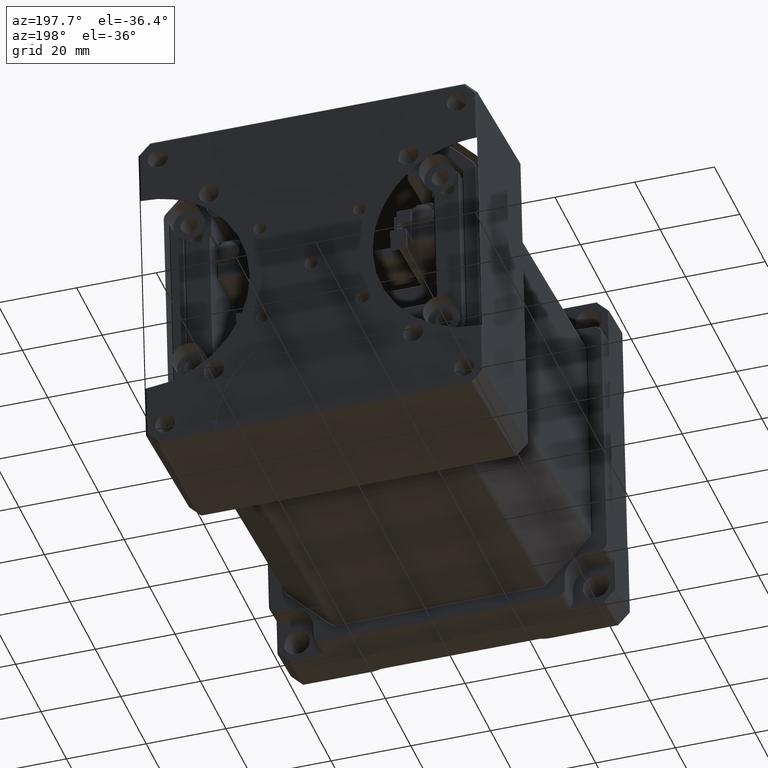
[diagram: clean part render]
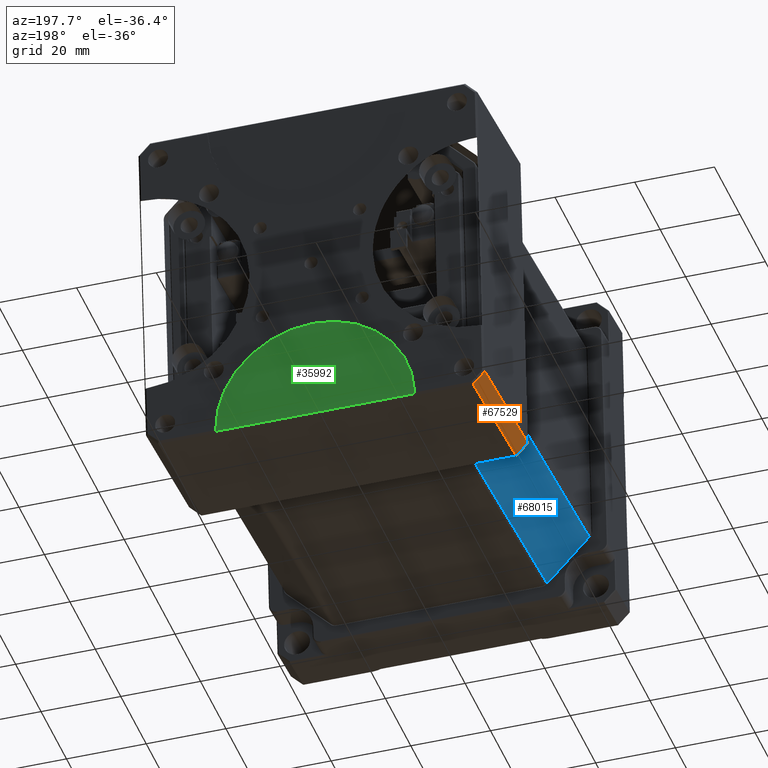
[diagram: same view with three faces highlighted in distinct colors, each labeled with its STEP entity id]
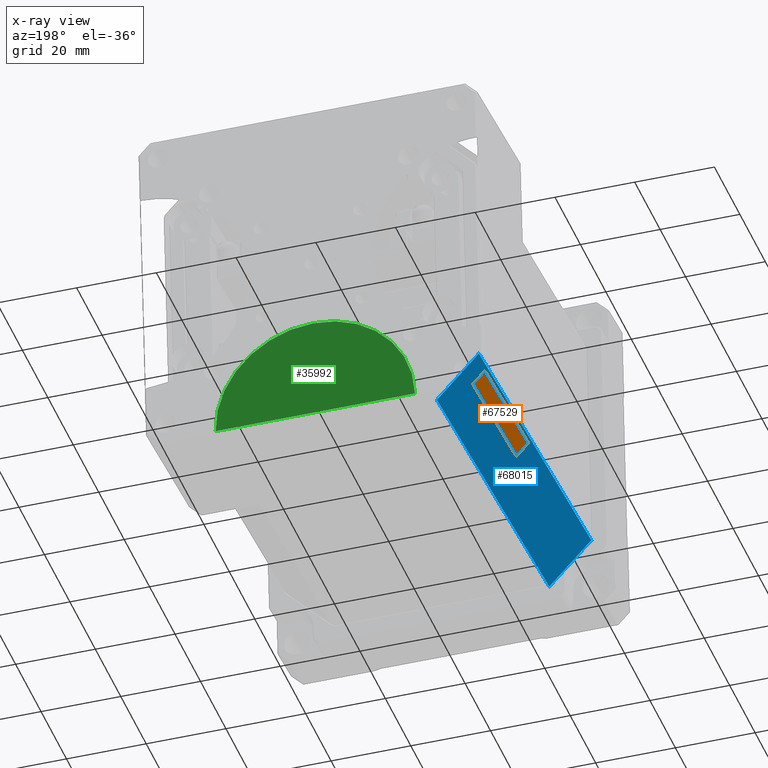
[diagram: x-ray of the same camera — body ghosted, the three highlighted faces saturated]
A machine part, auxiliary view with three faces highlighted in distinct colors.
The next image is the same camera in x-ray (body ghosted, the three faces saturated) — at least one of them is partly hidden behind the body in this view.
Their STEP definitions:

[orange] entity #67529 — the highlighted planar face has unit normal (0.7071, 0.0527, 0.7051).
#3045 = VECTOR ( 'NONE', #43292, 1000.000000000000114 ) ;
#7851 = VERTEX_POINT ( 'NONE', #64141 ) ;
#12719 = EDGE_LOOP ( 'NONE', ( #32303, #47292, #23494, #37156 ) ) ;
#14735 = VECTOR ( 'NONE', #56013, 1000.000000000000000 ) ;
#15205 = LINE ( 'NONE', #48195, #57818 ) ;
#15328 = DIRECTION ( 'NONE',  ( 0.000000000000000000, -0.9972141595530137348, 0.07459168845773997414 ) ) ;
#16025 = PLANE ( 'NONE',  #39373 ) ;
#21449 = FACE_OUTER_BOUND ( 'NONE', #12719, .T. ) ;
#21916 = VERTEX_POINT ( 'NONE', #22855 ) ;
#22855 = CARTESIAN_POINT ( 'NONE',  ( 59.61464020910850081, 37.11653214555315117, -60.72653898663920558 ) ) ;
#23494 = ORIENTED_EDGE ( 'NONE', *, *, #49039, .F. ) ;
#24481 = VECTOR ( 'NONE', #40400, 1000.000000000000000 ) ;
#25132 = LINE ( 'NONE', #59829, #3045 ) ;
#30930 = VERTEX_POINT ( 'NONE', #64845 ) ;
#32303 = ORIENTED_EDGE ( 'NONE', *, *, #68972, .F. ) ;
#34163 = LINE ( 'NONE', #56375, #14735 ) ;
#36321 = EDGE_CURVE ( 'NONE', #54053, #30930, #15205, .T. ) ;
#37156 = ORIENTED_EDGE ( 'NONE', *, *, #36321, .T. ) ;
#38373 = CARTESIAN_POINT ( 'NONE',  ( 59.61464020910840134, 71.02181357035568965, -63.26265639420229547 ) ) ;
#39373 = AXIS2_PLACEMENT_3D ( 'NONE', #47966, #69901, #15328 ) ;
#40400 = DIRECTION ( 'NONE',  ( -3.011479950260000061E-15, 0.9972141595530139568, -0.07459168845773699041 ) ) ;
#42122 = DIRECTION ( 'NONE',  ( 0.7071067811865442421, -0.05274428872861831874, -0.7051368945151832435 ) ) ;
#43292 = DIRECTION ( 'NONE',  ( -0.7071067811865442421, 0.05274428872861831874, 0.7051368945151832435 ) ) ;
#47063 = EDGE_CURVE ( 'NONE', #7851, #21916, #25132, .T. ) ;
#47292 = ORIENTED_EDGE ( 'NONE', *, *, #47063, .T. ) ;
#47966 = CARTESIAN_POINT ( 'NONE',  ( 62.61464020910850792, 36.39415000040344950, -63.68088562106940032 ) ) ;
#48195 = CARTESIAN_POINT ( 'NONE',  ( 62.61464020910839423, 70.79803850498240081, -66.25429887286139774 ) ) ;
#49039 = EDGE_CURVE ( 'NONE', #54053, #21916, #34163, .T. ) ;
#54053 = VERTEX_POINT ( 'NONE', #38373 ) ;
#56013 = DIRECTION ( 'NONE',  ( 3.011479950260000061E-15, -0.9972141595530139568, 0.07459168845773699041 ) ) ;
#56375 = CARTESIAN_POINT ( 'NONE',  ( 59.61464020910850081, 36.61792506577665307, -60.68924314241029805 ) ) ;
#57632 = LINE ( 'NONE', #62329, #24481 ) ;
#57818 = VECTOR ( 'NONE', #42122, 1000.000000000000114 ) ;
#59829 = CARTESIAN_POINT ( 'NONE',  ( 59.61464020910850081, 37.11653214555315117, -60.72653898663920558 ) ) ;
#62329 = CARTESIAN_POINT ( 'NONE',  ( 62.61464020910850792, 36.39415000040344950, -63.68088562106940032 ) ) ;
#64141 = CARTESIAN_POINT ( 'NONE',  ( 62.61464020910850792, 36.89275708017995470, -63.71818146529830074 ) ) ;
#64845 = CARTESIAN_POINT ( 'NONE',  ( 62.61464020910839423, 70.79803850498240081, -66.25429887286139774 ) ) ;
#67529 = ADVANCED_FACE ( 'NONE', ( #21449 ), #16025, .F. ) ;
#68972 = EDGE_CURVE ( 'NONE', #7851, #30930, #57632, .T. ) ;
#69901 = DIRECTION ( 'NONE',  ( 0.7071067811865507924, 0.05274428872862202411, 0.7051368945151765821 ) ) ;

[blue] entity #68015 — the highlighted planar face has unit normal (0.7071, 0.0527, 0.7051).
#816 = CARTESIAN_POINT ( 'NONE',  ( 75.02885377148199098, 60.66935138296489782, -60.89807497576789785 ) ) ;
#2499 = CARTESIAN_POINT ( 'NONE',  ( 75.61464020910889872, 60.42621375159610153, -61.46731116815199414 ) ) ;
#2591 = ORIENTED_EDGE ( 'NONE', *, *, #70204, .T. ) ;
#2618 = VERTEX_POINT ( 'NONE', #37519 ) ;
#5037 = CARTESIAN_POINT ( 'NONE',  ( 64.20042664673590593, -27.07555532276630217, -43.47607218623594605 ) ) ;
#11574 = VERTEX_POINT ( 'NONE', #19173 ) ;
#13599 = DIRECTION ( 'NONE',  ( 0.7071067811865476838, -0.05274428872861978285, -0.7051368945151798018 ) ) ;
#14090 = VERTEX_POINT ( 'NONE', #47339 ) ;
#14719 = LINE ( 'NONE', #5037, #53238 ) ;
#15600 = DIRECTION ( 'NONE',  ( 0.7071067811865472397, 0.05274428872862110124, 0.7051368945151802459 ) ) ;
#16843 = EDGE_LOOP ( 'NONE', ( #59271, #45837, #26139, #2591 ) ) ;
#17294 = LINE ( 'NONE', #816, #23457 ) ;
#17936 = LINE ( 'NONE', #2499, #54755 ) ;
#19173 = CARTESIAN_POINT ( 'NONE',  ( 64.20042664673590593, -27.07555532276630217, -43.47607218623594605 ) ) ;
#23278 = EDGE_CURVE ( 'NONE', #11574, #28398, #34431, .T. ) ;
#23457 = VECTOR ( 'NONE', #61077, 1000.000000000000114 ) ;
#26009 = FACE_OUTER_BOUND ( 'NONE', #16843, .T. ) ;
#26139 = ORIENTED_EDGE ( 'NONE', *, *, #69655, .T. ) ;
#26189 = DIRECTION ( 'NONE',  ( -0.7071067811865476838, 0.05274428872861978285, 0.7051368945151798018 ) ) ;
#26721 = DIRECTION ( 'NONE',  ( 0.000000000000000000, -0.9972141595530138458, 0.07459168845773829493 ) ) ;
#28398 = VERTEX_POINT ( 'NONE', #36035 ) ;
#34431 = LINE ( 'NONE', #45870, #70028 ) ;
#36035 = CARTESIAN_POINT ( 'NONE',  ( 64.20042664673579225, 61.27761921363070030, -50.08489578359149874 ) ) ;
#37519 = CARTESIAN_POINT ( 'NONE',  ( 75.02885377148199098, 60.46990855105430285, -60.88315663807630074 ) ) ;
#45176 = DIRECTION ( 'NONE',  ( -8.949057200030818454E-16, 0.9972141595530138458, -0.07459168845773737899 ) ) ;
#45837 = ORIENTED_EDGE ( 'NONE', *, *, #61384, .T. ) ;
#45870 = CARTESIAN_POINT ( 'NONE',  ( 64.20042664673579225, 61.47706204554130238, -50.09981412128310296 ) ) ;
#47339 = CARTESIAN_POINT ( 'NONE',  ( 75.02885377148209045, -27.88326598534269962, -54.27433304072080489 ) ) ;
#53238 = VECTOR ( 'NONE', #26189, 1000.000000000000227 ) ;
#54755 = VECTOR ( 'NONE', #13599, 1000.000000000000227 ) ;
#58312 = PLANE ( 'NONE',  #65861 ) ;
#59271 = ORIENTED_EDGE ( 'NONE', *, *, #23278, .T. ) ;
#61077 = DIRECTION ( 'NONE',  ( 8.949057200030818454E-16, -0.9972141595530138458, 0.07459168845773737899 ) ) ;
#61384 = EDGE_CURVE ( 'NONE', #28398, #2618, #17936, .T. ) ;
#64801 = CARTESIAN_POINT ( 'NONE',  ( 75.61464020910889872, 60.62565658350670361, -61.48222950584349888 ) ) ;
#65861 = AXIS2_PLACEMENT_3D ( 'NONE', #64801, #15600, #26721 ) ;
#68015 = ADVANCED_FACE ( 'NONE', ( #26009 ), #58312, .F. ) ;
#69655 = EDGE_CURVE ( 'NONE', #2618, #14090, #17294, .T. ) ;
#70028 = VECTOR ( 'NONE', #45176, 1000.000000000000114 ) ;
#70204 = EDGE_CURVE ( 'NONE', #14090, #11574, #14719, .T. ) ;

[green] entity #35992 — the highlighted planar face has unit normal (-0, 0.9972, -0.0746).
#4530 = DIRECTION ( 'NONE',  ( -3.019072660255667732E-15, 0.9972141595530139568, -0.07459168845773699041 ) ) ;
#4738 = AXIS2_PLACEMENT_3D ( 'NONE', #24151, #69007, #19130 ) ;
#5068 = AXIS2_PLACEMENT_3D ( 'NONE', #8491, #63019, #13155 ) ;
#6195 = AXIS2_PLACEMENT_3D ( 'NONE', #37540, #4530, #26061 ) ;
#8491 = CARTESIAN_POINT ( 'NONE',  ( 102.1146402091083871, 71.13449859707731093, -65.77806929962220295 ) ) ;
#8550 = EDGE_CURVE ( 'NONE', #59873, #19824, #31116, .T. ) ;
#8698 = EDGE_LOOP ( 'NONE', ( #56523, #35672, #66387, #22353 ) ) ;
#8835 = DIRECTION ( 'NONE',  ( 1.000000000000000000, 3.020478387291275313E-15, -9.396279893745719326E-17 ) ) ;
#13155 = DIRECTION ( 'NONE',  ( -1.000000000000000000, -2.775557561562890562E-15, 0.000000000000000000 ) ) ;
#16058 = AXIS2_PLACEMENT_3D ( 'NONE', #62854, #41285, #36983 ) ;
#16972 = EDGE_CURVE ( 'NONE', #59873, #66866, #45067, .T. ) ;
#18812 = VERTEX_POINT ( 'NONE', #33470 ) ;
#19130 = DIRECTION ( 'NONE',  ( -1.000000000000000000, -2.775557561562890562E-15, 0.000000000000000000 ) ) ;
#19824 = VERTEX_POINT ( 'NONE', #29649 ) ;
#20645 = CARTESIAN_POINT ( 'NONE',  ( 59.61464020910840134, 71.11958025938571382, -65.97751213153280503 ) ) ;
#22353 = ORIENTED_EDGE ( 'NONE', *, *, #16972, .F. ) ;
#23077 = EDGE_CURVE ( 'NONE', #18812, #66866, #41245, .T. ) ;
#24151 = CARTESIAN_POINT ( 'NONE',  ( 102.1146402091083871, 71.13449859707731093, -65.77806929962220295 ) ) ;
#26061 = DIRECTION ( 'NONE',  ( -1.000000000000000000, 0.000000000000000000, 4.047465237318294987E-14 ) ) ;
#29649 = CARTESIAN_POINT ( 'NONE',  ( 77.11464020910840134, 71.13449859707731093, -65.77806929962220295 ) ) ;
#31116 = CIRCLE ( 'NONE', #4738, 25.00000000000000711 ) ;
#33470 = CARTESIAN_POINT ( 'NONE',  ( 127.1146402091084013, 71.13449859707741041, -65.77806929962220295 ) ) ;
#35672 = ORIENTED_EDGE ( 'NONE', *, *, #69003, .T. ) ;
#35992 = ADVANCED_FACE ( 'NONE', ( #49001 ), #70234, .T. ) ;
#36983 = DIRECTION ( 'NONE',  ( -1.000000000000000000, -2.775557561562890562E-15, 0.000000000000000000 ) ) ;
#37540 = CARTESIAN_POINT ( 'NONE',  ( 102.1146402091083871, 71.13449859707731093, -65.77806929962220295 ) ) ;
#41245 = CIRCLE ( 'NONE', #16058, 25.00000000000000711 ) ;
#41285 = DIRECTION ( 'NONE',  ( -2.767825301044955438E-15, 0.9972141595530139568, -0.07459168845773699041 ) ) ;
#45067 = LINE ( 'NONE', #20645, #69489 ) ;
#47413 = CIRCLE ( 'NONE', #5068, 25.00000000000000711 ) ;
#49001 = FACE_OUTER_BOUND ( 'NONE', #8698, .T. ) ;
#56523 = ORIENTED_EDGE ( 'NONE', *, *, #8550, .T. ) ;
#59468 = CARTESIAN_POINT ( 'NONE',  ( 77.11544022190878422, 71.11958025938571382, -65.97751213153280503 ) ) ;
#59873 = VERTEX_POINT ( 'NONE', #59468 ) ;
#60683 = CARTESIAN_POINT ( 'NONE',  ( 127.1138401963079758, 71.11958025938589856, -65.97751213153280503 ) ) ;
#62854 = CARTESIAN_POINT ( 'NONE',  ( 102.1146402091083871, 71.13449859707731093, -65.77806929962220295 ) ) ;
#63019 = DIRECTION ( 'NONE',  ( -2.767825301044955438E-15, 0.9972141595530139568, -0.07459168845773699041 ) ) ;
#66387 = ORIENTED_EDGE ( 'NONE', *, *, #23077, .T. ) ;
#66866 = VERTEX_POINT ( 'NONE', #60683 ) ;
#69003 = EDGE_CURVE ( 'NONE', #19824, #18812, #47413, .T. ) ;
#69007 = DIRECTION ( 'NONE',  ( -2.767825301044955438E-15, 0.9972141595530139568, -0.07459168845773699041 ) ) ;
#69489 = VECTOR ( 'NONE', #8835, 1000.000000000000000 ) ;
#70234 = PLANE ( 'NONE',  #6195 ) ;